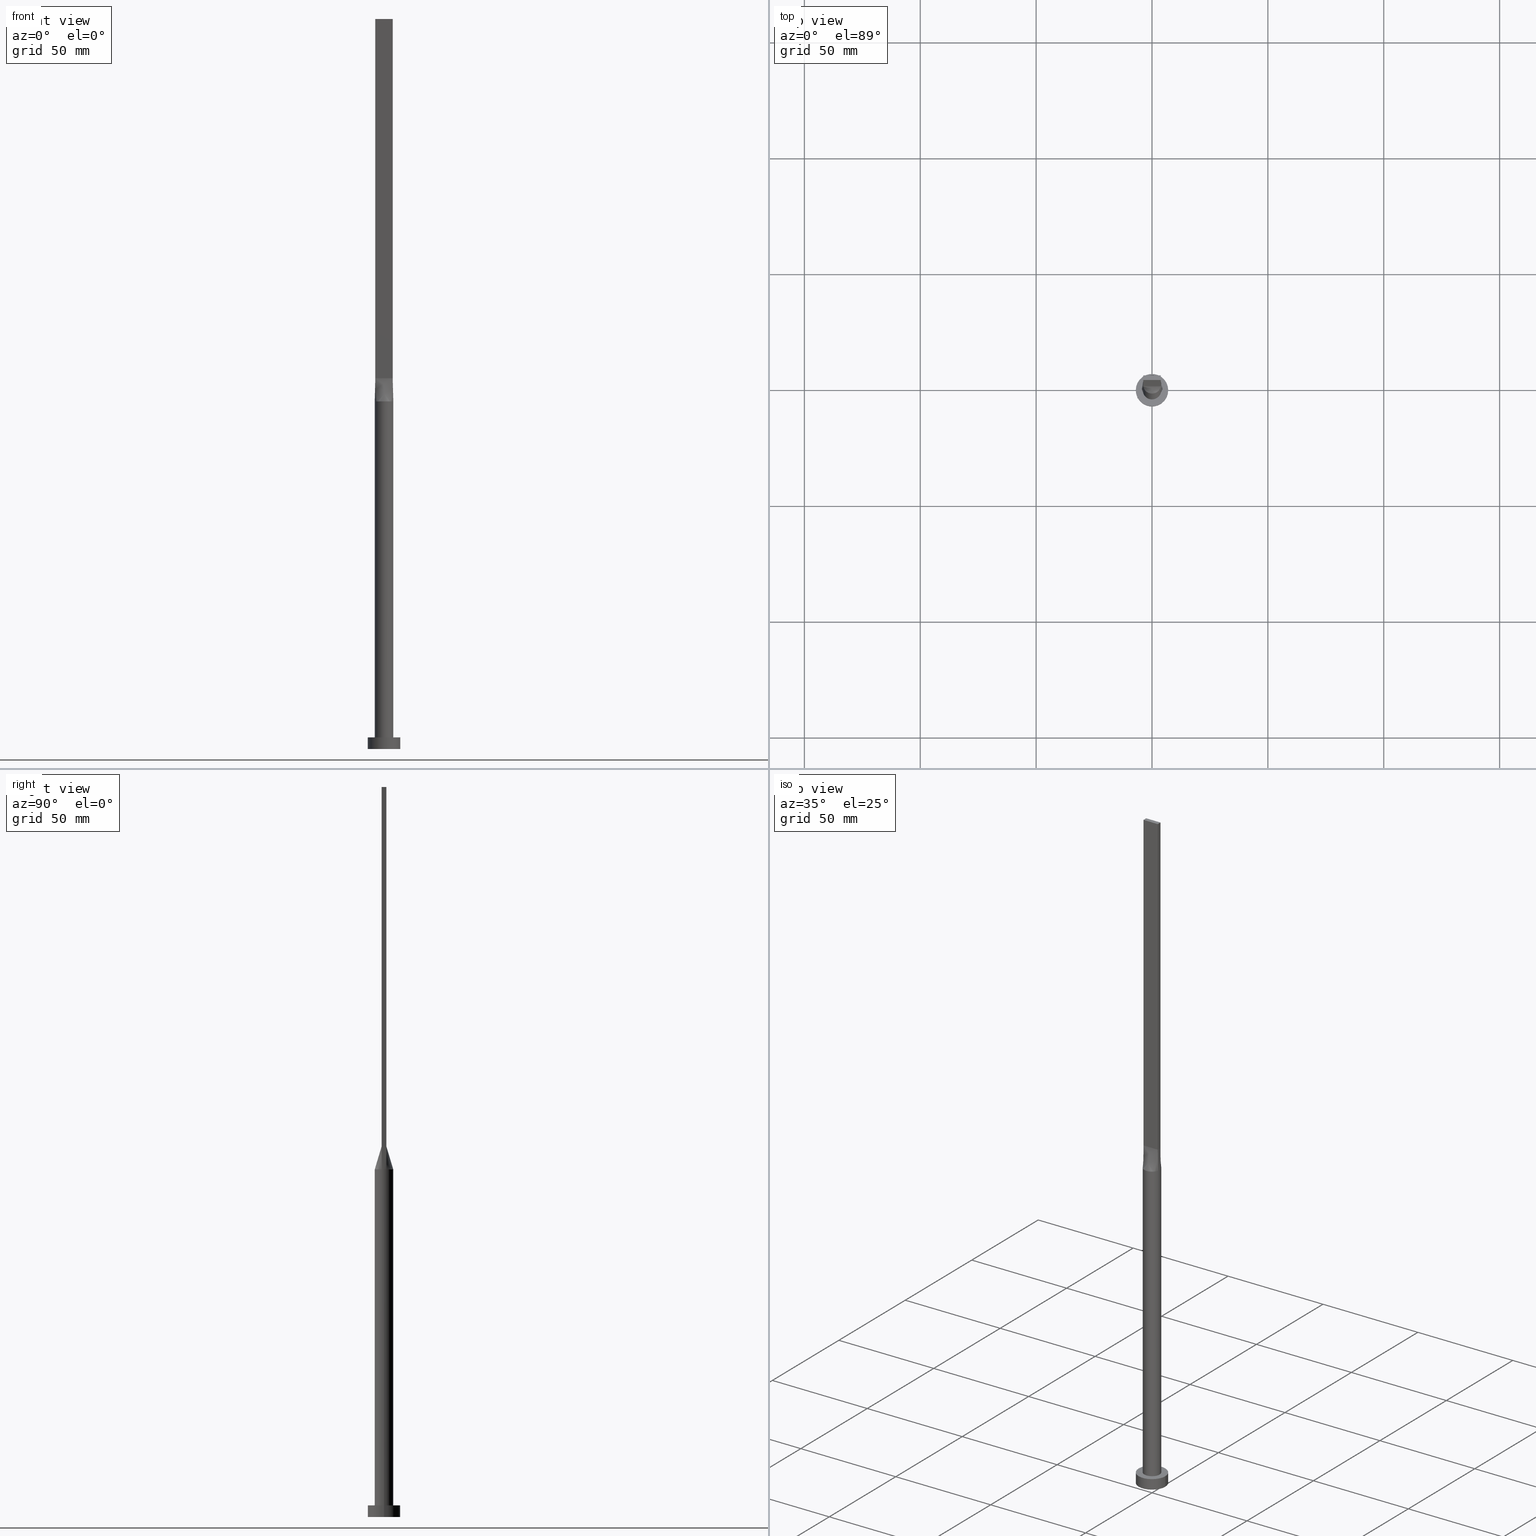
[diagram: canonical four-view strip — front | top / right | iso, engineering-drawing reading convention]
A machine part, canonical four-view strip (front | top / right | iso — engineering-drawing reading convention). The complete STEP part file that produces these views, byte-faithful:
ISO-10303-21;
HEADER;
FILE_DESCRIPTION (( 'STEP AP203' ),
    '1' );
FILE_NAME ('10a6.STEP',
    '2023-02-13T09:53:49',
    ( '' ),
    ( '' ),
    'SwSTEP 2.0',
    'SolidWorks 2019',
    '' );
FILE_SCHEMA (( 'CONFIG_CONTROL_DESIGN' ));
ENDSEC;

DATA;
#1 = CARTESIAN_POINT ( 'NONE',  ( -1.023074425454088221, 3.898373771260455811, 149.9999999999999716 ) ) ;
#2 = CARTESIAN_POINT ( 'NONE',  ( 3.750000000000000000, -0.9999999999999997780, 315.0000000000000000 ) ) ;
#3 = EDGE_CURVE ( 'NONE', #90, #185, #107, .T. ) ;
#4 = CARTESIAN_POINT ( 'NONE',  ( 1.249999999999999556, 1.000000000000000000, 159.9999999999999716 ) ) ;
#5 = APPLICATION_CONTEXT ( 'configuration controlled 3d designs of mechanical parts and assemblies' ) ;
#6 = ORIENTED_EDGE ( 'NONE', *, *, #312, .F. ) ;
#7 = CARTESIAN_POINT ( 'NONE',  ( 0.000000000000000000, 0.000000000000000000, 150.0000000000000000 ) ) ;
#8 = VERTEX_POINT ( 'NONE', #557 ) ;
#9 = APPROVAL_PERSON_ORGANIZATION ( #196, #233, #561 ) ;
#10 = EDGE_CURVE ( 'NONE', #364, #350, #384, .T. ) ;
#11 = ORIENTED_EDGE ( 'NONE', *, *, #139, .T. ) ;
#12 = ORIENTED_EDGE ( 'NONE', *, *, #161, .F. ) ;
#13 = UNCERTAINTY_MEASURE_WITH_UNIT (LENGTH_MEASURE( 1.000000000000000082E-05 ), #500, 'distance_accuracy_value', 'NONE');
#14 = DIRECTION ( 'NONE',  ( -1.000000000000000000, 0.000000000000000000, 0.000000000000000000 ) ) ;
#15 = VERTEX_POINT ( 'NONE', #389 ) ;
#16 = CARTESIAN_POINT ( 'NONE',  ( -1.940702937457743138, 3.532374760555930582, 149.9999999999999716 ) ) ;
#17 = VECTOR ( 'NONE', #335, 1000.000000000000000 ) ;
#18 = CC_DESIGN_APPROVAL ( #329, ( #286 ) ) ;
#19 = CARTESIAN_POINT ( 'NONE',  ( -3.781952206537765981, -1.341853921743402900, 150.0000000000000568 ) ) ;
#20 = CARTESIAN_POINT ( 'NONE',  ( -1.940702937457743138, 3.532374760555930582, 149.9999999999999716 ) ) ;
#21 = CC_DESIGN_DATE_AND_TIME_ASSIGNMENT ( #344, #29, ( #317 ) ) ;
#22 = CARTESIAN_POINT ( 'NONE',  ( 0.000000000000000000, 0.000000000000000000, 0.000000000000000000 ) ) ;
#23 = CALENDAR_DATE ( 2023, 13, 2 ) ;
#24 = FACE_OUTER_BOUND ( 'NONE', #549, .T. ) ;
#25 = COORDINATED_UNIVERSAL_TIME_OFFSET ( 1, 0, .AHEAD. ) ;
#26 = AXIS2_PLACEMENT_3D ( 'NONE', #30, #289, #466 ) ;
#27 = DIRECTION ( 'NONE',  ( -0.000000000000000000, -0.000000000000000000, -1.000000000000000000 ) ) ;
#28 = PRODUCT_RELATED_PRODUCT_CATEGORY ( 'detail', '', ( #410 ) ) ;
#29 = DATE_TIME_ROLE ( 'classification_date' ) ;
#30 = CARTESIAN_POINT ( 'NONE',  ( 3.750000000000000000, 1.000000000000000000, 315.0000000000000000 ) ) ;
#31 = APPROVAL_STATUS ( 'not_yet_approved' ) ;
#32 = PLANE ( 'NONE',  #172 ) ;
#33 = DIRECTION ( 'NONE',  ( 1.000000000000000000, -8.673617379884035472E-17, 0.000000000000000000 ) ) ;
#34 = CARTESIAN_POINT ( 'NONE',  ( 4.000000000000000000, -0.3494497975066829798, 150.0000000000000000 ) ) ;
#35 = DIRECTION ( 'NONE',  ( 1.000000000000000000, 0.000000000000000000, -0.000000000000000000 ) ) ;
#36 = ORIENTED_EDGE ( 'NONE', *, *, #99, .F. ) ;
#37 = EDGE_CURVE ( 'NONE', #15, #8, #339, .T. ) ;
#38 = CARTESIAN_POINT ( 'NONE',  ( 3.864939758404985604, -1.030650602241328873, 150.0000000000000000 ) ) ;
#39 = FACE_OUTER_BOUND ( 'NONE', #260, .T. ) ;
#40 = VERTEX_POINT ( 'NONE', #352 ) ;
#41 = DIRECTION ( 'NONE',  ( 0.01149316269309399140, -0.003064843384824947770, 0.9999292544707033548 ) ) ;
#42 = CARTESIAN_POINT ( 'NONE',  ( 0.000000000000000000, 0.000000000000000000, 5.000000000000000000 ) ) ;
#43 = CARTESIAN_POINT ( 'NONE',  ( 1.562499999999983569, -0.9999999999999995559, 159.9999999999999716 ) ) ;
#44 = CARTESIAN_POINT ( 'NONE',  ( -3.750000000000000000, -0.9999999999999991118, 315.0000000000000000 ) ) ;
#45 = VECTOR ( 'NONE', #448, 1000.000000000000000 ) ;
#46 = EDGE_CURVE ( 'NONE', #418, #185, #468, .T. ) ;
#47 = CARTESIAN_POINT ( 'NONE',  ( -3.781952206537765537, 1.341853921743403788, 150.0000000000000000 ) ) ;
#48 = DIRECTION ( 'NONE',  ( 0.000000000000000000, 0.000000000000000000, 1.000000000000000000 ) ) ;
#49 = CARTESIAN_POINT ( 'NONE',  ( -2.346407003458401253, 3.270103945996944095, 150.0000000000000000 ) ) ;
#50 = FACE_OUTER_BOUND ( 'NONE', #118, .T. ) ;
#51 = ORIENTED_EDGE ( 'NONE', *, *, #198, .T. ) ;
#52 = CARTESIAN_POINT ( 'NONE',  ( -3.750000000000000000, 1.000000000000000000, 160.0000000000000000 ) ) ;
#53 = ORIENTED_EDGE ( 'NONE', *, *, #320, .F. ) ;
#54 = VECTOR ( 'NONE', #478, 1000.000000000000000 ) ;
#55 = VERTEX_POINT ( 'NONE', #580 ) ;
#56 = EDGE_LOOP ( 'NONE', ( #374, #36, #100, #482 ) ) ;
#57 = CARTESIAN_POINT ( 'NONE',  ( -3.437500000000000000, 1.000000000000000000, 159.9999999999999716 ) ) ;
#58 = CARTESIAN_POINT ( 'NONE',  ( -3.750000000000000000, -0.9999999999999991118, 315.0000000000000000 ) ) ;
#59 = ORIENTED_EDGE ( 'NONE', *, *, #127, .T. ) ;
#60 = EDGE_CURVE ( 'NONE', #368, #90, #151, .T. ) ;
#61 = CARTESIAN_POINT ( 'NONE',  ( -0.5121855420560009753, 4.000000000000000888, 150.0000000000000000 ) ) ;
#62 = VECTOR ( 'NONE', #142, 1000.000000000000000 ) ;
#63 = DIRECTION ( 'NONE',  ( 0.000000000000000000, -1.000000000000000000, 0.000000000000000000 ) ) ;
#64 = CARTESIAN_POINT ( 'NONE',  ( 2.346407003458400808, 3.270103945996944983, 150.0000000000000000 ) ) ;
#65 = CARTESIAN_POINT ( 'NONE',  ( -3.750000000000000000, -0.9999999999999991118, 160.0000000000000000 ) ) ;
#66 = EDGE_CURVE ( 'NONE', #322, #189, #485, .T. ) ;
#67 = DIRECTION ( 'NONE',  ( -0.01149316269309399140, -0.003064843384825013256, -0.9999292544707033548 ) ) ;
#68 = CALENDAR_DATE ( 2023, 13, 2 ) ;
#69 = CIRCLE ( 'NONE', #397, 7.000000000000000000 ) ;
#70 = CARTESIAN_POINT ( 'NONE',  ( 0.000000000000000000, 0.000000000000000000, 5.000000000000000000 ) ) ;
#71 = COORDINATED_UNIVERSAL_TIME_OFFSET ( 1, 0, .AHEAD. ) ;
#72 = CARTESIAN_POINT ( 'NONE',  ( 3.749999999999999556, -0.6666666666666661856, 159.9999999999999716 ) ) ;
#73 = CARTESIAN_POINT ( 'NONE',  ( -3.750000000000000000, -0.9999999999999991118, 315.0000000000000000 ) ) ;
#74 = CARTESIAN_POINT ( 'NONE',  ( 3.750000000000000000, 1.000000000000000000, 315.0000000000000000 ) ) ;
#75 = LINE ( 'NONE', #407, #459 ) ;
#76 = ORIENTED_EDGE ( 'NONE', *, *, #37, .F. ) ;
#77 = PERSON_AND_ORGANIZATION ( #503, #323 ) ;
#78 = CC_DESIGN_PERSON_AND_ORGANIZATION_ASSIGNMENT ( #77, #392, ( #540 ) ) ;
#79 = CLOSED_SHELL ( 'NONE', ( #227, #207, #386, #145, #294, #183, #429, #521, #287, #567, #398, #86, #117, #215, #475 ) ) ;
#80 = CARTESIAN_POINT ( 'NONE',  ( 3.953459813730020311, 0.6987003947724492736, 150.0000000000000000 ) ) ;
#81 = CARTESIAN_POINT ( 'NONE',  ( -3.750000000000000000, -0.9999999999999991118, 315.0000000000000000 ) ) ;
#82 = CARTESIAN_POINT ( 'NONE',  ( -1.250000000000017764, -0.9999999999999993339, 159.9999999999999716 ) ) ;
#83 = CARTESIAN_POINT ( 'NONE',  ( 0.000000000000000000, 0.000000000000000000, 150.0000000000000000 ) ) ;
#84 = EDGE_LOOP ( 'NONE', ( #51, #361, #441, #223, #12 ) ) ;
#85 = CARTESIAN_POINT ( 'NONE',  ( 0.000000000000000000, 0.000000000000000000, 5.000000000000000000 ) ) ;
#86 = ADVANCED_FACE ( 'NONE', ( #532 ), #439, .F. ) ;
#87 = DIRECTION ( 'NONE',  ( -0.000000000000000000, -0.000000000000000000, -1.000000000000000000 ) ) ;
#88 = VECTOR ( 'NONE', #514, 1000.000000000000000 ) ;
#89 = PLANE ( 'NONE',  #95 ) ;
#90 = VERTEX_POINT ( 'NONE', #125 ) ;
#91 = DIRECTION ( 'NONE',  ( 1.000000000000000000, 0.000000000000000000, 0.000000000000000000 ) ) ;
#92 = VERTEX_POINT ( 'NONE', #129 ) ;
#93 = EDGE_CURVE ( 'NONE', #8, #364, #304, .T. ) ;
#94 = VERTEX_POINT ( 'NONE', #313 ) ;
#95 = AXIS2_PLACEMENT_3D ( 'NONE', #273, #541, #452 ) ;
#96 = ORIENTED_EDGE ( 'NONE', *, *, #46, .T. ) ;
#97 = CARTESIAN_POINT ( 'NONE',  ( -1.562500000000000444, 1.000000000000000000, 159.9999999999999716 ) ) ;
#98 = CARTESIAN_POINT ( 'NONE',  ( -3.864939758404985604, -1.030650602241328206, 150.0000000000000000 ) ) ;
#99 = EDGE_CURVE ( 'NONE', #189, #350, #449, .T. ) ;
#100 = ORIENTED_EDGE ( 'NONE', *, *, #66, .F. ) ;
#101 = CARTESIAN_POINT ( 'NONE',  ( -0.6250000000000005551, 1.000000000000000000, 159.9999999999999716 ) ) ;
#102 = PLANE ( 'NONE',  #345 ) ;
#103 = ADVANCED_BREP_SHAPE_REPRESENTATION ( '10a6', ( #408, #210 ), #221 ) ;
#104 = CARTESIAN_POINT ( 'NONE',  ( 0.3124999999999995004, 1.000000000000000000, 160.0000000000000000 ) ) ;
#105 = VECTOR ( 'NONE', #87, 1000.000000000000000 ) ;
#106 = DIRECTION ( 'NONE',  ( 0.000000000000000000, 0.000000000000000000, 1.000000000000000000 ) ) ;
#107 = LINE ( 'NONE', #342, #54 ) ;
#108 = PERSON_AND_ORGANIZATION ( #503, #323 ) ;
#109 = CC_DESIGN_PERSON_AND_ORGANIZATION_ASSIGNMENT ( #428, #159, ( #286 ) ) ;
#110 = CYLINDRICAL_SURFACE ( 'NONE', #144, 7.000000000000000000 ) ;
#111 = PERSON_AND_ORGANIZATION ( #503, #323 ) ;
#112 = LINE ( 'NONE', #563, #497 ) ;
#113 = DIRECTION ( 'NONE',  ( 0.000000000000000000, 0.000000000000000000, 1.000000000000000000 ) ) ;
#114 = DATE_AND_TIME ( #290, #332 ) ;
#115 = DIRECTION ( 'NONE',  ( 0.000000000000000000, 0.000000000000000000, 1.000000000000000000 ) ) ;
#116 = DIRECTION ( 'NONE',  ( -0.000000000000000000, 1.000000000000000000, -0.000000000000000000 ) ) ;
#117 = ADVANCED_FACE ( 'NONE', ( #216 ), #400, .F. ) ;
#118 = EDGE_LOOP ( 'NONE', ( #280, #372, #96, #417, #458, #217 ) ) ;
#119 = PERSON_AND_ORGANIZATION ( #503, #323 ) ;
#120 = CARTESIAN_POINT ( 'NONE',  ( 3.750000000000000000, -0.9999999999999997780, 160.0000000000000000 ) ) ;
#121 = DIRECTION ( 'NONE',  ( -0.000000000000000000, -0.000000000000000000, -1.000000000000000000 ) ) ;
#122 = VECTOR ( 'NONE', #121, 1000.000000000000000 ) ;
#123 = CARTESIAN_POINT ( 'NONE',  ( 0.6249999999999806821, -0.9999999999999995559, 159.9999999999999716 ) ) ;
#124 = CIRCLE ( 'NONE', #440, 7.000000000000000000 ) ;
#125 = CARTESIAN_POINT ( 'NONE',  ( -4.000000000000000000, -2.459132308497027359E-16, 150.0000000000000000 ) ) ;
#126 = ORIENTED_EDGE ( 'NONE', *, *, #250, .T. ) ;
#127 = EDGE_CURVE ( 'NONE', #55, #40, #488, .T. ) ;
#128 = LINE ( 'NONE', #74, #354 ) ;
#129 = CARTESIAN_POINT ( 'NONE',  ( 7.000000000000000000, 8.572527594031473190E-16, 0.000000000000000000 ) ) ;
#130 = VERTEX_POINT ( 'NONE', #402 ) ;
#131 = CARTESIAN_POINT ( 'NONE',  ( -3.009488128496037529, 2.672487015486668671, 150.0000000000000000 ) ) ;
#132 = ORIENTED_EDGE ( 'NONE', *, *, #275, .F. ) ;
#133 = CARTESIAN_POINT ( 'NONE',  ( 3.267840578657193795, 2.338604872288698289, 149.9999999999999432 ) ) ;
#134 = VECTOR ( 'NONE', #41, 1000.000000000000114 ) ;
#135 = EDGE_LOOP ( 'NONE', ( #411, #174, #412, #450 ) ) ;
#136 = CARTESIAN_POINT ( 'NONE',  ( 3.009488128496037085, 2.672487015486669115, 150.0000000000000000 ) ) ;
#137 = DIRECTION ( 'NONE',  ( 0.000000000000000000, 0.000000000000000000, 1.000000000000000000 ) ) ;
#138 = ORIENTED_EDGE ( 'NONE', *, *, #250, .F. ) ;
#139 = EDGE_CURVE ( 'NONE', #350, #507, #75, .T. ) ;
#140 = CARTESIAN_POINT ( 'NONE',  ( 0.000000000000000000, 0.000000000000000000, 5.000000000000000000 ) ) ;
#141 = EDGE_LOOP ( 'NONE', ( #230, #213, #138, #132, #502, #357 ) ) ;
#142 = DIRECTION ( 'NONE',  ( -1.000000000000000000, -0.000000000000000000, -0.000000000000000000 ) ) ;
#143 = ORIENTED_EDGE ( 'NONE', *, *, #161, .T. ) ;
#144 = AXIS2_PLACEMENT_3D ( 'NONE', #70, #27, #568 ) ;
#145 = ADVANCED_FACE ( 'NONE', ( #349, #39 ), #176, .T. ) ;
#146 = ORIENTED_EDGE ( 'NONE', *, *, #420, .F. ) ;
#147 = CARTESIAN_POINT ( 'NONE',  ( -0.3125000000000004996, 1.000000000000000000, 159.9999999999999716 ) ) ;
#148 = CARTESIAN_POINT ( 'NONE',  ( 3.750000000000000000, -0.9999999999999997780, 315.0000000000000000 ) ) ;
#149 = CARTESIAN_POINT ( 'NONE',  ( 3.781952206537764205, 1.341853921743403788, 150.0000000000000568 ) ) ;
#150 = CARTESIAN_POINT ( 'NONE',  ( -2.500000000000011102, -0.9999999999999991118, 159.9999999999999716 ) ) ;
#151 = CIRCLE ( 'NONE', #469, 4.000000000000000000 ) ;
#152 = FACE_OUTER_BOUND ( 'NONE', #256, .T. ) ;
#153 = EDGE_LOOP ( 'NONE', ( #126, #143, #267, #547 ) ) ;
#154 = PERSON_AND_ORGANIZATION ( #503, #323 ) ;
#155 = CARTESIAN_POINT ( 'NONE',  ( -3.749999999999999556, -0.3333333333333324822, 159.9999999999999716 ) ) ;
#156 = APPROVAL_ROLE ( '' ) ;
#157 = CARTESIAN_POINT ( 'NONE',  ( -1.023074425454088887, -3.898373771260456255, 149.9999999999999716 ) ) ;
#158 = EDGE_LOOP ( 'NONE', ( #324, #76, #226, #542 ) ) ;
#159 = PERSON_AND_ORGANIZATION_ROLE ( 'creator' ) ;
#160 = AXIS2_PLACEMENT_3D ( 'NONE', #373, #48, #91 ) ;
#161 = EDGE_CURVE ( 'NONE', #272, #350, #528, .T. ) ;
#162 = CARTESIAN_POINT ( 'NONE',  ( 1.249999999999982236, -0.9999999999999995559, 159.9999999999999716 ) ) ;
#163 = CARTESIAN_POINT ( 'NONE',  ( -3.750000000000000000, 1.000000000000000000, 160.0000000000000000 ) ) ;
#164 = SECURITY_CLASSIFICATION_LEVEL ( 'unclassified' ) ;
#165 = DIRECTION ( 'NONE',  ( 1.000000000000000000, 0.000000000000000000, 0.000000000000000000 ) ) ;
#166 = CARTESIAN_POINT ( 'NONE',  ( -7.000000000000000000, 0.000000000000000000, 5.000000000000000000 ) ) ;
#167 = CARTESIAN_POINT ( 'NONE',  ( 3.750000000000000000, 1.000000000000000000, 160.0000000000000000 ) ) ;
#168 = DIRECTION ( 'NONE',  ( -0.000000000000000000, -0.000000000000000000, -1.000000000000000000 ) ) ;
#169 = EDGE_CURVE ( 'NONE', #322, #364, #301, .T. ) ;
#170 = CIRCLE ( 'NONE', #365, 4.000000000000000000 ) ;
#171 = DIRECTION ( 'NONE',  ( -0.01149316269309394803, -0.003064843384824991138, 0.9999292544707033548 ) ) ;
#172 = AXIS2_PLACEMENT_3D ( 'NONE', #445, #115, #214 ) ;
#173 = DIRECTION ( 'NONE',  ( -0.01149316269309399140, 0.003064843384825013256, 0.9999292544707033548 ) ) ;
#174 = ORIENTED_EDGE ( 'NONE', *, *, #483, .T. ) ;
#175 = CARTESIAN_POINT ( 'NONE',  ( -3.653499896451231521, 1.673258289339058180, 149.9999999999999716 ) ) ;
#176 = PLANE ( 'NONE',  #199 ) ;
#177 = B_SPLINE_SURFACE_WITH_KNOTS ( 'NONE', 3, 1, ( 
 ( #265, #378 ),
 ( #149, #498 ),
 ( #281, #453 ),
 ( #539, #318 ),
 ( #136, #537 ),
 ( #64, #558 ),
 ( #409, #4 ),
 ( #179, #375 ),
 ( #472, #104 ),
 ( #61, #147 ),
 ( #510, #101 ),
 ( #16, #555 ),
 ( #181, #97 ),
 ( #131, #465 ),
 ( #362, #191 ),
 ( #359, #243 ),
 ( #311, #57 ),
 ( #421, #241 ) ),
 .UNSPECIFIED., .F., .F., .F.,
 ( 4, 2, 2, 2, 2, 2, 2, 2, 4 ),
 ( 2, 2 ),
 ( 0.000000000000000000, 0.1250000000000000000, 0.2500000000000000000, 0.3750000000000000000, 0.5000000000000000000, 0.6250000000000000000, 0.7500000000000000000, 0.8750000000000000000, 1.000000000000000000 ),
 ( 0.000000000000000000, 1.000000000000000000 ),
 .UNSPECIFIED. ) ;
#178 = VERTEX_POINT ( 'NONE', #259 ) ;
#179 = CARTESIAN_POINT ( 'NONE',  ( 1.023074425454087999, 3.898373771260456255, 149.9999999999999716 ) ) ;
#180 = ORIENTED_EDGE ( 'NONE', *, *, #268, .F. ) ;
#181 = CARTESIAN_POINT ( 'NONE',  ( -2.346407003458401253, 3.270103945996944095, 150.0000000000000000 ) ) ;
#182 = B_SPLINE_SURFACE_WITH_KNOTS ( 'NONE', 3, 1, ( 
 ( #457, #52 ),
 ( #427, #203 ),
 ( #291, #295 ),
 ( #430, #155 ),
 ( #197, #192 ),
 ( #334, #518 ) ),
 .UNSPECIFIED., .F., .F., .F.,
 ( 4, 2, 4 ),
 ( 2, 2 ),
 ( 0.000000000000000000, 0.5000000000000000000, 1.000000000000000000 ),
 ( 0.000000000000000000, 1.000000000000000000 ),
 .UNSPECIFIED. ) ;
#183 = ADVANCED_FACE ( 'NONE', ( #394 ), #572, .T. ) ;
#184 = VECTOR ( 'NONE', #171, 1000.000000000000114 ) ;
#185 = VERTEX_POINT ( 'NONE', #356 ) ;
#186 = ORIENTED_EDGE ( 'NONE', *, *, #46, .F. ) ;
#187 = ORIENTED_EDGE ( 'NONE', *, *, #305, .F. ) ;
#188 = EDGE_CURVE ( 'NONE', #507, #8, #535, .T. ) ;
#189 = VERTEX_POINT ( 'NONE', #548 ) ;
#190 = CIRCLE ( 'NONE', #513, 4.000000000000000000 ) ;
#191 = CARTESIAN_POINT ( 'NONE',  ( -2.500000000000000444, 1.000000000000000000, 159.9999999999999716 ) ) ;
#192 = CARTESIAN_POINT ( 'NONE',  ( -3.749999999999999556, -0.6666666666666657415, 159.9999999999999716 ) ) ;
#193 = LINE ( 'NONE', #545, #105 ) ;
#194 = CARTESIAN_POINT ( 'NONE',  ( -3.125000000000005773, -0.9999999999999991118, 159.9999999999999716 ) ) ;
#195 = EDGE_LOOP ( 'NONE', ( #515, #554, #495, #380 ) ) ;
#196 = PERSON_AND_ORGANIZATION ( #503, #323 ) ;
#197 = CARTESIAN_POINT ( 'NONE',  ( -3.953459813730020311, -0.6987003947724488295, 150.0000000000000000 ) ) ;
#198 = EDGE_CURVE ( 'NONE', #272, #130, #533, .T. ) ;
#199 = AXIS2_PLACEMENT_3D ( 'NONE', #491, #209, #219 ) ;
#200 = PERSON_AND_ORGANIZATION ( #503, #323 ) ;
#201 = AXIS2_PLACEMENT_3D ( 'NONE', #303, #113, #576 ) ;
#202 = APPLICATION_CONTEXT ( 'configuration controlled 3d designs of mechanical parts and assemblies' ) ;
#203 = CARTESIAN_POINT ( 'NONE',  ( -3.749999999999999556, 0.6666666666666669627, 159.9999999999999716 ) ) ;
#204 = CALENDAR_DATE ( 2023, 13, 2 ) ;
#205 = LINE ( 'NONE', #238, #425 ) ;
#206 = APPROVAL_ROLE ( '' ) ;
#207 = ADVANCED_FACE ( 'NONE', ( #460 ), #225, .T. ) ;
#208 = CARTESIAN_POINT ( 'NONE',  ( 0.3124999999999803491, -0.9999999999999995559, 159.9999999999999716 ) ) ;
#209 = DIRECTION ( 'NONE',  ( 0.000000000000000000, 0.000000000000000000, 1.000000000000000000 ) ) ;
#210 = AXIS2_PLACEMENT_3D ( 'NONE', #436, #333, #302 ) ;
#211 = CARTESIAN_POINT ( 'NONE',  ( 3.009488128496036641, -2.672487015486668671, 150.0000000000000000 ) ) ;
#212 = CARTESIAN_POINT ( 'NONE',  ( -3.750000000000000000, 1.000000000000000000, 315.0000000000000000 ) ) ;
#213 = ORIENTED_EDGE ( 'NONE', *, *, #198, .F. ) ;
#214 = DIRECTION ( 'NONE',  ( 1.000000000000000000, 0.000000000000000000, -0.000000000000000000 ) ) ;
#215 = ADVANCED_FACE ( 'NONE', ( #321 ), #89, .F. ) ;
#216 = FACE_OUTER_BOUND ( 'NONE', #56, .T. ) ;
#217 = ORIENTED_EDGE ( 'NONE', *, *, #578, .F. ) ;
#218 = CARTESIAN_POINT ( 'NONE',  ( 2.187499999999986677, -0.9999999999999995559, 159.9999999999999716 ) ) ;
#219 = DIRECTION ( 'NONE',  ( 1.000000000000000000, 0.000000000000000000, -0.000000000000000000 ) ) ;
#220 = LINE ( 'NONE', #534, #45 ) ;
#221 =( GEOMETRIC_REPRESENTATION_CONTEXT ( 3 ) GLOBAL_UNCERTAINTY_ASSIGNED_CONTEXT ( ( #13 ) ) GLOBAL_UNIT_ASSIGNED_CONTEXT ( ( #500, #296, #340 ) ) REPRESENTATION_CONTEXT ( 'NONE', 'WORKASPACE' ) );
#222 = DIRECTION ( 'NONE',  ( 8.673617379884036705E-17, 1.000000000000000000, -0.000000000000000000 ) ) ;
#223 = ORIENTED_EDGE ( 'NONE', *, *, #139, .F. ) ;
#224 = CARTESIAN_POINT ( 'NONE',  ( -3.865236553917747120, 1.030730781768519622, 150.0000000000000000 ) ) ;
#225 = CYLINDRICAL_SURFACE ( 'NONE', #433, 7.000000000000000000 ) ;
#226 = ORIENTED_EDGE ( 'NONE', *, *, #462, .F. ) ;
#227 = ADVANCED_FACE ( 'NONE', ( #50 ), #229, .T. ) ;
#228 = CARTESIAN_POINT ( 'NONE',  ( -3.009488128496037529, 2.672487015486668671, 150.0000000000000000 ) ) ;
#229 = CYLINDRICAL_SURFACE ( 'NONE', #278, 4.000000000000000000 ) ;
#230 = ORIENTED_EDGE ( 'NONE', *, *, #446, .F. ) ;
#231 = CC_DESIGN_SECURITY_CLASSIFICATION ( #317, ( #286 ) ) ;
#232 = EDGE_LOOP ( 'NONE', ( #326, #499, #279, #455 ) ) ;
#233 = APPROVAL ( #390, 'NEUR�EN�' ) ;
#234 = EDGE_LOOP ( 'NONE', ( #236, #505, #6, #536, #444 ) ) ;
#235 = CARTESIAN_POINT ( 'NONE',  ( 0.000000000000000000, 0.000000000000000000, 150.0000000000000000 ) ) ;
#236 = ORIENTED_EDGE ( 'NONE', *, *, #60, .T. ) ;
#237 = CARTESIAN_POINT ( 'NONE',  ( 3.865212754195084699, 1.030724393897464841, 150.0000000000000000 ) ) ;
#238 = CARTESIAN_POINT ( 'NONE',  ( 7.000000000000000000, 8.572527594031473190E-16, 5.000000000000000000 ) ) ;
#239 = VECTOR ( 'NONE', #347, 1000.000000000000000 ) ;
#240 = CC_DESIGN_APPROVAL ( #456, ( #540 ) ) ;
#241 = CARTESIAN_POINT ( 'NONE',  ( -3.750000000000000000, 1.000000000000000000, 160.0000000000000000 ) ) ;
#242 = CARTESIAN_POINT ( 'NONE',  ( -3.653499896451231521, -1.673258289339057514, 150.0000000000000000 ) ) ;
#243 = CARTESIAN_POINT ( 'NONE',  ( -3.125000000000000000, 1.000000000000000000, 159.9999999999999716 ) ) ;
#244 = DIRECTION ( 'NONE',  ( 0.000000000000000000, 0.000000000000000000, 1.000000000000000000 ) ) ;
#245 = DATE_AND_TIME ( #23, #479 ) ;
#246 = LINE ( 'NONE', #148, #88 ) ;
#247 = COORDINATED_UNIVERSAL_TIME_OFFSET ( 1, 0, .AHEAD. ) ;
#248 = CIRCLE ( 'NONE', #414, 7.000000000000000000 ) ;
#249 = PLANE ( 'NONE',  #26 ) ;
#250 = EDGE_CURVE ( 'NONE', #464, #272, #170, .T. ) ;
#251 = DATE_TIME_ROLE ( 'creation_date' ) ;
#252 = CARTESIAN_POINT ( 'NONE',  ( 0.5121855420560003092, -3.999999999999999112, 150.0000000000000000 ) ) ;
#253 = DIRECTION ( 'NONE',  ( 1.000000000000000000, 0.000000000000000000, 0.000000000000000000 ) ) ;
#254 = APPLICATION_PROTOCOL_DEFINITION ( 'international standard', 'config_control_design', 1994, #5 ) ;
#255 = CARTESIAN_POINT ( 'NONE',  ( -3.807469879202492802, 1.015325301120663992, 155.0000000000000000 ) ) ;
#256 = EDGE_LOOP ( 'NONE', ( #314, #187, #59, #538 ) ) ;
#257 = CIRCLE ( 'NONE', #471, 7.000000000000000000 ) ;
#258 = CARTESIAN_POINT ( 'NONE',  ( 3.807469879202492358, 1.015325301120664436, 155.0000000000000000 ) ) ;
#259 = CARTESIAN_POINT ( 'NONE',  ( 3.865212754195084699, 1.030724393897464841, 150.0000000000000000 ) ) ;
#260 = EDGE_LOOP ( 'NONE', ( #552, #274 ) ) ;
#261 = CARTESIAN_POINT ( 'NONE',  ( -0.6250000000000193179, -0.9999999999999993339, 159.9999999999999716 ) ) ;
#262 = DIRECTION ( 'NONE',  ( -1.000000000000000000, 0.000000000000000000, 0.000000000000000000 ) ) ;
#263 = CARTESIAN_POINT ( 'NONE',  ( -2.187500000000013323, -0.9999999999999993339, 159.9999999999999716 ) ) ;
#264 = DIRECTION ( 'NONE',  ( 1.000000000000000000, 0.000000000000000000, 0.000000000000000000 ) ) ;
#265 = CARTESIAN_POINT ( 'NONE',  ( 3.864939758404985160, 1.030650602241329539, 150.0000000000000000 ) ) ;
#266 = DIRECTION ( 'NONE',  ( 0.000000000000000000, 0.000000000000000000, 1.000000000000000000 ) ) ;
#267 = ORIENTED_EDGE ( 'NONE', *, *, #10, .F. ) ;
#268 = EDGE_CURVE ( 'NONE', #185, #418, #553, .T. ) ;
#269 = CARTESIAN_POINT ( 'NONE',  ( 1.023074425454087999, 3.898373771260456255, 149.9999999999999716 ) ) ;
#270 = CARTESIAN_POINT ( 'NONE',  ( 0.000000000000000000, 0.000000000000000000, 150.0000000000000000 ) ) ;
#271 = PRODUCT_DEFINITION_SHAPE ( 'NONE', 'NONE',  #540 ) ;
#272 = VERTEX_POINT ( 'NONE', #367 ) ;
#273 = CARTESIAN_POINT ( 'NONE',  ( 3.750000000000000000, -0.9999999999999997780, 315.0000000000000000 ) ) ;
#274 = ORIENTED_EDGE ( 'NONE', *, *, #489, .T. ) ;
#275 = EDGE_CURVE ( 'NONE', #90, #464, #190, .T. ) ;
#276 = AXIS2_PLACEMENT_3D ( 'NONE', #235, #266, #363 ) ;
#277 = CARTESIAN_POINT ( 'NONE',  ( 0.000000000000000000, 0.000000000000000000, 150.0000000000000000 ) ) ;
#278 = AXIS2_PLACEMENT_3D ( 'NONE', #7, #506, #14 ) ;
#279 = ORIENTED_EDGE ( 'NONE', *, *, #358, .F. ) ;
#280 = ORIENTED_EDGE ( 'NONE', *, *, #516, .F. ) ;
#281 = CARTESIAN_POINT ( 'NONE',  ( 3.653499896451231521, 1.673258289339057958, 150.0000000000000000 ) ) ;
#282 = B_SPLINE_CURVE_WITH_KNOTS ( 'NONE', 3,
 ( #237, #284, #288, #133, #316, #467, #330, #269, #426, #451, #1, #20, #49, #228, #512, #175, #47, #224 ),
 .UNSPECIFIED., .F., .F.,
 ( 4, 2, 2, 2, 2, 2, 2, 2, 4 ),
 ( 0.000000000000000000, 0.1250000000000000000, 0.2500000000000000000, 0.3750000000000000000, 0.5000000000000000000, 0.6250000000000000000, 0.7500000000000000000, 0.8750000000000000000, 1.000000000000000000 ),
 .UNSPECIFIED. ) ;
#283 = ORIENTED_EDGE ( 'NONE', *, *, #99, .T. ) ;
#284 = CARTESIAN_POINT ( 'NONE',  ( 3.781952206537764205, 1.341853921743403788, 150.0000000000000568 ) ) ;
#285 = LINE ( 'NONE', #565, #405 ) ;
#286 = PRODUCT_DEFINITION_FORMATION_WITH_SPECIFIED_SOURCE ( 'LIBOVOLN�', '', #410, .NOT_KNOWN. ) ;
#287 = ADVANCED_FACE ( 'NONE', ( #501 ), #182, .T. ) ;
#288 = CARTESIAN_POINT ( 'NONE',  ( 3.653499896451231521, 1.673258289339057958, 150.0000000000000000 ) ) ;
#289 = DIRECTION ( 'NONE',  ( 0.000000000000000000, -1.000000000000000000, 0.000000000000000000 ) ) ;
#290 = CALENDAR_DATE ( 2023, 13, 2 ) ;
#291 = CARTESIAN_POINT ( 'NONE',  ( -4.000000000000000000, 0.3494497975066826467, 150.0000000000000000 ) ) ;
#292 = CARTESIAN_POINT ( 'NONE',  ( -3.750000000000000000, -0.9999999999999991118, 160.0000000000000000 ) ) ;
#293 = PERSON_AND_ORGANIZATION_ROLE ( 'classification_officer' ) ;
#294 = ADVANCED_FACE ( 'NONE', ( #24 ), #102, .F. ) ;
#295 = CARTESIAN_POINT ( 'NONE',  ( -3.749999999999999556, 0.3333333333333338144, 159.9999999999999716 ) ) ;
#296 =( NAMED_UNIT ( * ) PLANE_ANGLE_UNIT ( ) SI_UNIT ( $, .RADIAN. ) );
#297 = CC_DESIGN_APPROVAL ( #233, ( #317 ) ) ;
#298 = CARTESIAN_POINT ( 'NONE',  ( 3.864939758404985160, -1.030650602241329539, 150.0000000000000000 ) ) ;
#299 = DIRECTION ( 'NONE',  ( -0.000000000000000000, -0.000000000000000000, -1.000000000000000000 ) ) ;
#300 = CARTESIAN_POINT ( 'NONE',  ( 3.953459813730019423, -0.6987003947724502728, 150.0000000000000284 ) ) ;
#301 = LINE ( 'NONE', #81, #395 ) ;
#302 = DIRECTION ( 'NONE',  ( 1.000000000000000000, 0.000000000000000000, 0.000000000000000000 ) ) ;
#303 = CARTESIAN_POINT ( 'NONE',  ( 0.000000000000000000, 0.000000000000000000, 150.0000000000000000 ) ) ;
#304 = LINE ( 'NONE', #163, #383 ) ;
#305 = EDGE_CURVE ( 'NONE', #55, #94, #124, .T. ) ;
#306 = CARTESIAN_POINT ( 'NONE',  ( -1.562500000000016653, -0.9999999999999993339, 159.9999999999999716 ) ) ;
#307 = DIRECTION ( 'NONE',  ( 0.000000000000000000, 0.000000000000000000, 1.000000000000000000 ) ) ;
#308 = CARTESIAN_POINT ( 'NONE',  ( 3.267840578657194239, -2.338604872288699177, 149.9999999999999716 ) ) ;
#309 = DIRECTION ( 'NONE',  ( 0.000000000000000000, -1.000000000000000000, 0.000000000000000000 ) ) ;
#310 = ORIENTED_EDGE ( 'NONE', *, *, #358, .T. ) ;
#311 = CARTESIAN_POINT ( 'NONE',  ( -3.781952206537765537, 1.341853921743403788, 150.0000000000000000 ) ) ;
#312 = EDGE_CURVE ( 'NONE', #364, #464, #112, .T. ) ;
#313 = CARTESIAN_POINT ( 'NONE',  ( 7.000000000000000000, 8.572527594031473190E-16, 5.000000000000000000 ) ) ;
#314 = ORIENTED_EDGE ( 'NONE', *, *, #415, .F. ) ;
#315 = AXIS2_PLACEMENT_3D ( 'NONE', #577, #168, #262 ) ;
#316 = CARTESIAN_POINT ( 'NONE',  ( 3.009488128496037085, 2.672487015486669115, 150.0000000000000000 ) ) ;
#317 = SECURITY_CLASSIFICATION ( '', '', #164 ) ;
#318 = CARTESIAN_POINT ( 'NONE',  ( 2.499999999999999112, 1.000000000000000000, 159.9999999999999716 ) ) ;
#319 = EDGE_LOOP ( 'NONE', ( #180, #186 ) ) ;
#320 = EDGE_CURVE ( 'NONE', #189, #419, #246, .T. ) ;
#321 = FACE_OUTER_BOUND ( 'NONE', #461, .T. ) ;
#322 = VERTEX_POINT ( 'NONE', #58 ) ;
#323 = ORGANIZATION ( 'NEUR�EN�', 'NEUR�EN�', '' ) ;
#324 = ORIENTED_EDGE ( 'NONE', *, *, #188, .T. ) ;
#325 = CARTESIAN_POINT ( 'NONE',  ( 3.750000000000000000, 1.000000000000000000, 315.0000000000000000 ) ) ;
#326 = ORIENTED_EDGE ( 'NONE', *, *, #93, .T. ) ;
#327 = CARTESIAN_POINT ( 'NONE',  ( 3.750000000000000000, 1.000000000000000000, 160.0000000000000000 ) ) ;
#328 = CARTESIAN_POINT ( 'NONE',  ( -3.437500000000003109, -0.9999999999999991118, 159.9999999999999716 ) ) ;
#329 = APPROVAL ( #31, 'NEUR�EN�' ) ;
#330 = CARTESIAN_POINT ( 'NONE',  ( 1.940702937457743582, 3.532374760555930582, 149.9999999999999716 ) ) ;
#331 = CARTESIAN_POINT ( 'NONE',  ( 0.000000000000000000, 0.000000000000000000, 5.000000000000000000 ) ) ;
#332 = LOCAL_TIME ( 10, 53, 49.00000000000000000, #517 ) ;
#333 = DIRECTION ( 'NONE',  ( 0.000000000000000000, 0.000000000000000000, 1.000000000000000000 ) ) ;
#334 = CARTESIAN_POINT ( 'NONE',  ( -3.864939758404985604, -1.030650602241328428, 150.0000000000000000 ) ) ;
#335 = DIRECTION ( 'NONE',  ( 1.000000000000000000, -8.673617379884035472E-17, 0.000000000000000000 ) ) ;
#336 = PERSON_AND_ORGANIZATION_ROLE ( 'design_supplier' ) ;
#337 = CC_DESIGN_PERSON_AND_ORGANIZATION_ASSIGNMENT ( #111, #293, ( #317 ) ) ;
#338 = DIRECTION ( 'NONE',  ( 1.000000000000000000, 0.000000000000000000, -0.000000000000000000 ) ) ;
#339 = LINE ( 'NONE', #523, #413 ) ;
#340 =( NAMED_UNIT ( * ) SI_UNIT ( $, .STERADIAN. ) SOLID_ANGLE_UNIT ( ) );
#341 = CARTESIAN_POINT ( 'NONE',  ( -3.865220763612065902, -1.030726602927787949, 150.0000000000000000 ) ) ;
#342 = CARTESIAN_POINT ( 'NONE',  ( -4.000000000000000000, 0.000000000000000000, 150.0000000000000000 ) ) ;
#343 = AXIS2_PLACEMENT_3D ( 'NONE', #42, #443, #253 ) ;
#344 = DATE_AND_TIME ( #204, #543 ) ;
#345 = AXIS2_PLACEMENT_3D ( 'NONE', #470, #511, #338 ) ;
#346 = CARTESIAN_POINT ( 'NONE',  ( 3.781952206537765981, -1.341853921743404232, 150.0000000000000000 ) ) ;
#347 = DIRECTION ( 'NONE',  ( -0.000000000000000000, -0.000000000000000000, -1.000000000000000000 ) ) ;
#348 = FACE_OUTER_BOUND ( 'NONE', #84, .T. ) ;
#349 = FACE_BOUND ( 'NONE', #319, .T. ) ;
#350 = VERTEX_POINT ( 'NONE', #388 ) ;
#351 = CARTESIAN_POINT ( 'NONE',  ( 3.749999999999999556, 0.3333333333333339810, 159.9999999999999716 ) ) ;
#352 = CARTESIAN_POINT ( 'NONE',  ( -7.000000000000000000, 0.000000000000000000, 0.000000000000000000 ) ) ;
#353 = VECTOR ( 'NONE', #33, 1000.000000000000000 ) ;
#354 = VECTOR ( 'NONE', #406, 1000.000000000000000 ) ;
#355 = CARTESIAN_POINT ( 'NONE',  ( -0.3125000000000197065, -0.9999999999999993339, 160.0000000000000000 ) ) ;
#356 = CARTESIAN_POINT ( 'NONE',  ( -4.000000000000000000, 0.000000000000000000, 5.000000000000000000 ) ) ;
#357 = ORIENTED_EDGE ( 'NONE', *, *, #268, .T. ) ;
#358 = EDGE_CURVE ( 'NONE', #15, #322, #285, .T. ) ;
#359 = CARTESIAN_POINT ( 'NONE',  ( -3.653499896451231521, 1.673258289339058180, 149.9999999999999716 ) ) ;
#360 = CARTESIAN_POINT ( 'NONE',  ( 3.807469879202492802, -1.015325301120664214, 155.0000000000000000 ) ) ;
#361 = ORIENTED_EDGE ( 'NONE', *, *, #516, .T. ) ;
#362 = CARTESIAN_POINT ( 'NONE',  ( -3.267840578657194239, 2.338604872288698289, 149.9999999999999716 ) ) ;
#363 = DIRECTION ( 'NONE',  ( 1.000000000000000000, -6.217248937900876626E-15, 0.000000000000000000 ) ) ;
#364 = VERTEX_POINT ( 'NONE', #65 ) ;
#365 = AXIS2_PLACEMENT_3D ( 'NONE', #270, #454, #504 ) ;
#366 = FACE_OUTER_BOUND ( 'NONE', #135, .T. ) ;
#367 = CARTESIAN_POINT ( 'NONE',  ( 3.865244591400370577, -1.030732999276501527, 150.0000000000000000 ) ) ;
#368 = VERTEX_POINT ( 'NONE', #382 ) ;
#369 = DIRECTION ( 'NONE',  ( -1.000000000000000000, 0.000000000000000000, 0.000000000000000000 ) ) ;
#370 = ORIENTED_EDGE ( 'NONE', *, *, #66, .T. ) ;
#371 = EDGE_CURVE ( 'NONE', #92, #40, #69, .T. ) ;
#372 = ORIENTED_EDGE ( 'NONE', *, *, #446, .T. ) ;
#373 = CARTESIAN_POINT ( 'NONE',  ( 0.000000000000000000, 0.000000000000000000, 5.000000000000000000 ) ) ;
#374 = ORIENTED_EDGE ( 'NONE', *, *, #10, .T. ) ;
#375 = CARTESIAN_POINT ( 'NONE',  ( 0.6249999999999994449, 1.000000000000000000, 159.9999999999999716 ) ) ;
#376 = CC_DESIGN_PERSON_AND_ORGANIZATION_ASSIGNMENT ( #200, #387, ( #410 ) ) ;
#377 = DIRECTION ( 'NONE',  ( 0.000000000000000000, 0.000000000000000000, 1.000000000000000000 ) ) ;
#378 = CARTESIAN_POINT ( 'NONE',  ( 3.750000000000000000, 1.000000000000000000, 160.0000000000000000 ) ) ;
#379 = CARTESIAN_POINT ( 'NONE',  ( 4.000000000000000000, 4.898587196589412829E-16, 5.000000000000000000 ) ) ;
#380 = ORIENTED_EDGE ( 'NONE', *, *, #127, .F. ) ;
#381 = APPROVAL_DATE_TIME ( #245, #329 ) ;
#382 = CARTESIAN_POINT ( 'NONE',  ( -3.865236553917747120, 1.030730781768519622, 150.0000000000000000 ) ) ;
#383 = VECTOR ( 'NONE', #309, 1000.000000000000000 ) ;
#384 = LINE ( 'NONE', #292, #17 ) ;
#385 = LOCAL_TIME ( 10, 53, 49.00000000000000000, #71 ) ;
#386 = ADVANCED_FACE ( 'NONE', ( #152 ), #110, .T. ) ;
#387 = PERSON_AND_ORGANIZATION_ROLE ( 'design_owner' ) ;
#388 = CARTESIAN_POINT ( 'NONE',  ( 3.750000000000000000, -0.9999999999999997780, 160.0000000000000000 ) ) ;
#389 = CARTESIAN_POINT ( 'NONE',  ( -3.750000000000000000, 1.000000000000000000, 315.0000000000000000 ) ) ;
#390 = APPROVAL_STATUS ( 'not_yet_approved' ) ;
#391 = DIRECTION ( 'NONE',  ( -0.000000000000000000, -0.000000000000000000, -1.000000000000000000 ) ) ;
#392 = PERSON_AND_ORGANIZATION_ROLE ( 'creator' ) ;
#393 = CARTESIAN_POINT ( 'NONE',  ( 1.940702937457743360, -3.532374760555930582, 149.9999999999999716 ) ) ;
#394 = FACE_OUTER_BOUND ( 'NONE', #141, .T. ) ;
#395 = VECTOR ( 'NONE', #447, 1000.000000000000000 ) ;
#396 = CALENDAR_DATE ( 2023, 13, 2 ) ;
#397 = AXIS2_PLACEMENT_3D ( 'NONE', #432, #244, #477 ) ;
#398 = ADVANCED_FACE ( 'NONE', ( #434 ), #249, .F. ) ;
#399 = CARTESIAN_POINT ( 'NONE',  ( -0.5121855420560018635, -4.000000000000000000, 150.0000000000000000 ) ) ;
#400 = PLANE ( 'NONE',  #496 ) ;
#401 = CARTESIAN_POINT ( 'NONE',  ( 3.749999999999999556, 0.6666666666666670737, 159.9999999999999716 ) ) ;
#402 = CARTESIAN_POINT ( 'NONE',  ( 4.000000000000000000, -1.256865613583667397E-17, 150.0000000000000000 ) ) ;
#403 = EDGE_LOOP ( 'NONE', ( #509, #310, #370, #529 ) ) ;
#404 = CARTESIAN_POINT ( 'NONE',  ( 3.437499999999996447, -0.9999999999999995559, 159.9999999999999716 ) ) ;
#405 = VECTOR ( 'NONE', #63, 1000.000000000000000 ) ;
#406 = DIRECTION ( 'NONE',  ( -1.000000000000000000, 0.000000000000000000, 0.000000000000000000 ) ) ;
#407 = CARTESIAN_POINT ( 'NONE',  ( 3.750000000000000000, 1.000000000000000000, 160.0000000000000000 ) ) ;
#408 = MANIFOLD_SOLID_BREP ( 'P�idat vysunut�m5', #79 ) ;
#409 = CARTESIAN_POINT ( 'NONE',  ( 1.940702937457743582, 3.532374760555930582, 149.9999999999999716 ) ) ;
#410 = PRODUCT ( '10a6', '10a6', '', ( #486 ) ) ;
#411 = ORIENTED_EDGE ( 'NONE', *, *, #578, .T. ) ;
#412 = ORIENTED_EDGE ( 'NONE', *, *, #188, .F. ) ;
#413 = VECTOR ( 'NONE', #299, 1000.000000000000000 ) ;
#414 = AXIS2_PLACEMENT_3D ( 'NONE', #22, #106, #556 ) ;
#415 = EDGE_CURVE ( 'NONE', #94, #92, #205, .T. ) ;
#416 = CARTESIAN_POINT ( 'NONE',  ( -3.750000000000000000, 1.000000000000000000, 160.0000000000000000 ) ) ;
#417 = ORIENTED_EDGE ( 'NONE', *, *, #3, .F. ) ;
#418 = VERTEX_POINT ( 'NONE', #379 ) ;
#419 = VERTEX_POINT ( 'NONE', #325 ) ;
#420 = EDGE_CURVE ( 'NONE', #40, #92, #248, .T. ) ;
#421 = CARTESIAN_POINT ( 'NONE',  ( -3.864939758404985604, 1.030650602241328428, 150.0000000000000000 ) ) ;
#422 = DESIGN_CONTEXT ( 'detailed design', #202, 'design' ) ;
#423 = AXIS2_PLACEMENT_3D ( 'NONE', #212, #35, #494 ) ;
#424 = CARTESIAN_POINT ( 'NONE',  ( -3.750000000000000000, -0.9999999999999991118, 160.0000000000000000 ) ) ;
#425 = VECTOR ( 'NONE', #391, 1000.000000000000000 ) ;
#426 = CARTESIAN_POINT ( 'NONE',  ( 0.5121855420560009753, 4.000000000000000888, 150.0000000000000000 ) ) ;
#427 = CARTESIAN_POINT ( 'NONE',  ( -3.953459813730019423, 0.6987003947724497177, 150.0000000000000284 ) ) ;
#428 = PERSON_AND_ORGANIZATION ( #503, #323 ) ;
#429 = ADVANCED_FACE ( 'NONE', ( #508 ), #520, .T. ) ;
#430 = CARTESIAN_POINT ( 'NONE',  ( -3.999999999999999112, -0.3494497975066816475, 150.0000000000000000 ) ) ;
#431 = DATE_AND_TIME ( #68, #544 ) ;
#432 = CARTESIAN_POINT ( 'NONE',  ( 0.000000000000000000, 0.000000000000000000, 0.000000000000000000 ) ) ;
#433 = AXIS2_PLACEMENT_3D ( 'NONE', #140, #551, #369 ) ;
#434 = FACE_OUTER_BOUND ( 'NONE', #158, .T. ) ;
#435 = CARTESIAN_POINT ( 'NONE',  ( 3.749999999999999556, -0.3333333333333326487, 159.9999999999999716 ) ) ;
#436 = CARTESIAN_POINT ( 'NONE',  ( 0.000000000000000000, 0.000000000000000000, 0.000000000000000000 ) ) ;
#437 = EDGE_CURVE ( 'NONE', #178, #507, #442, .T. ) ;
#438 = CARTESIAN_POINT ( 'NONE',  ( -1.940702937457744692, -3.532374760555929250, 149.9999999999999716 ) ) ;
#439 = PLANE ( 'NONE',  #423 ) ;
#440 = AXIS2_PLACEMENT_3D ( 'NONE', #331, #377, #476 ) ;
#441 = ORIENTED_EDGE ( 'NONE', *, *, #437, .T. ) ;
#442 = LINE ( 'NONE', #258, #184 ) ;
#443 = DIRECTION ( 'NONE',  ( 0.000000000000000000, 0.000000000000000000, 1.000000000000000000 ) ) ;
#444 = ORIENTED_EDGE ( 'NONE', *, *, #483, .F. ) ;
#445 = CARTESIAN_POINT ( 'NONE',  ( 0.000000000000000000, 0.000000000000000000, 315.0000000000000000 ) ) ;
#446 = EDGE_CURVE ( 'NONE', #130, #418, #220, .T. ) ;
#447 = DIRECTION ( 'NONE',  ( -0.000000000000000000, -0.000000000000000000, -1.000000000000000000 ) ) ;
#448 = DIRECTION ( 'NONE',  ( -0.000000000000000000, -0.000000000000000000, -1.000000000000000000 ) ) ;
#449 = LINE ( 'NONE', #2, #122 ) ;
#450 = ORIENTED_EDGE ( 'NONE', *, *, #437, .F. ) ;
#451 = CARTESIAN_POINT ( 'NONE',  ( -0.5121855420560009753, 4.000000000000000888, 150.0000000000000000 ) ) ;
#452 = DIRECTION ( 'NONE',  ( 0.000000000000000000, 0.000000000000000000, 1.000000000000000000 ) ) ;
#453 = CARTESIAN_POINT ( 'NONE',  ( 3.124999999999999112, 1.000000000000000000, 159.9999999999999716 ) ) ;
#454 = DIRECTION ( 'NONE',  ( 0.000000000000000000, 0.000000000000000000, 1.000000000000000000 ) ) ;
#455 = ORIENTED_EDGE ( 'NONE', *, *, #37, .T. ) ;
#456 = APPROVAL ( #569, 'NEUR�EN�' ) ;
#457 = CARTESIAN_POINT ( 'NONE',  ( -3.864939758404985160, 1.030650602241329317, 150.0000000000000000 ) ) ;
#458 = ORIENTED_EDGE ( 'NONE', *, *, #60, .F. ) ;
#459 = VECTOR ( 'NONE', #116, 1000.000000000000000 ) ;
#460 = FACE_OUTER_BOUND ( 'NONE', #195, .T. ) ;
#461 = EDGE_LOOP ( 'NONE', ( #11, #492, #53, #283 ) ) ;
#462 = EDGE_CURVE ( 'NONE', #419, #15, #128, .T. ) ;
#463 = B_SPLINE_SURFACE_WITH_KNOTS ( 'NONE', 3, 1, ( 
 ( #298, #481 ),
 ( #300, #72 ),
 ( #34, #435 ),
 ( #487, #351 ),
 ( #80, #401 ),
 ( #531, #327 ) ),
 .UNSPECIFIED., .F., .F., .F.,
 ( 4, 2, 4 ),
 ( 2, 2 ),
 ( 0.000000000000000000, 0.5000000000000000000, 1.000000000000000000 ),
 ( 0.000000000000000000, 1.000000000000000000 ),
 .UNSPECIFIED. ) ;
#464 = VERTEX_POINT ( 'NONE', #341 ) ;
#465 = CARTESIAN_POINT ( 'NONE',  ( -2.187500000000000444, 1.000000000000000000, 159.9999999999999716 ) ) ;
#466 = DIRECTION ( 'NONE',  ( 0.000000000000000000, -0.000000000000000000, -1.000000000000000000 ) ) ;
#467 = CARTESIAN_POINT ( 'NONE',  ( 2.346407003458400808, 3.270103945996944983, 150.0000000000000000 ) ) ;
#468 = CIRCLE ( 'NONE', #343, 4.000000000000000000 ) ;
#469 = AXIS2_PLACEMENT_3D ( 'NONE', #83, #307, #264 ) ;
#470 = CARTESIAN_POINT ( 'NONE',  ( 0.000000000000000000, 0.000000000000000000, 0.000000000000000000 ) ) ;
#471 = AXIS2_PLACEMENT_3D ( 'NONE', #85, #522, #165 ) ;
#472 = CARTESIAN_POINT ( 'NONE',  ( 0.5121855420560009753, 4.000000000000000888, 150.0000000000000000 ) ) ;
#473 = CARTESIAN_POINT ( 'NONE',  ( -3.009488128496037529, -2.672487015486668227, 150.0000000000000000 ) ) ;
#474 = APPROVAL_DATE_TIME ( #114, #233 ) ;
#475 = ADVANCED_FACE ( 'NONE', ( #526 ), #32, .T. ) ;
#476 = DIRECTION ( 'NONE',  ( 1.000000000000000000, 0.000000000000000000, 0.000000000000000000 ) ) ;
#477 = DIRECTION ( 'NONE',  ( 1.000000000000000000, 0.000000000000000000, 0.000000000000000000 ) ) ;
#478 = DIRECTION ( 'NONE',  ( -0.000000000000000000, -0.000000000000000000, -1.000000000000000000 ) ) ;
#479 = LOCAL_TIME ( 10, 53, 49.00000000000000000, #525 ) ;
#480 = APPLICATION_PROTOCOL_DEFINITION ( 'international standard', 'config_control_design', 1994, #202 ) ;
#481 = CARTESIAN_POINT ( 'NONE',  ( 3.750000000000000000, -1.000000000000000000, 160.0000000000000000 ) ) ;
#482 = ORIENTED_EDGE ( 'NONE', *, *, #169, .T. ) ;
#483 = EDGE_CURVE ( 'NONE', #368, #8, #493, .T. ) ;
#484 = CARTESIAN_POINT ( 'NONE',  ( -2.346407003458402141, -3.270103945996943651, 150.0000000000000000 ) ) ;
#485 = LINE ( 'NONE', #44, #353 ) ;
#486 = MECHANICAL_CONTEXT ( 'NONE', #5, 'mechanical' ) ;
#487 = CARTESIAN_POINT ( 'NONE',  ( 3.999999999999999112, 0.3494497975066819251, 150.0000000000000000 ) ) ;
#488 = LINE ( 'NONE', #166, #239 ) ;
#489 = EDGE_CURVE ( 'NONE', #94, #55, #257, .T. ) ;
#490 = CARTESIAN_POINT ( 'NONE',  ( 2.499999999999988898, -0.9999999999999995559, 159.9999999999999716 ) ) ;
#491 = CARTESIAN_POINT ( 'NONE',  ( 0.000000000000000000, 0.000000000000000000, 5.000000000000000000 ) ) ;
#492 = ORIENTED_EDGE ( 'NONE', *, *, #530, .F. ) ;
#493 = LINE ( 'NONE', #255, #134 ) ;
#494 = DIRECTION ( 'NONE',  ( -0.000000000000000000, 0.000000000000000000, -1.000000000000000000 ) ) ;
#495 = ORIENTED_EDGE ( 'NONE', *, *, #371, .T. ) ;
#496 = AXIS2_PLACEMENT_3D ( 'NONE', #73, #222, #575 ) ;
#497 = VECTOR ( 'NONE', #67, 1000.000000000000114 ) ;
#498 = CARTESIAN_POINT ( 'NONE',  ( 3.437499999999999556, 1.000000000000000000, 159.9999999999999716 ) ) ;
#499 = ORIENTED_EDGE ( 'NONE', *, *, #169, .F. ) ;
#500 =( LENGTH_UNIT ( ) NAMED_UNIT ( * ) SI_UNIT ( .MILLI., .METRE. ) );
#501 = FACE_OUTER_BOUND ( 'NONE', #234, .T. ) ;
#502 = ORIENTED_EDGE ( 'NONE', *, *, #3, .T. ) ;
#503 = PERSON ( 'NEUR�EN�', 'NEUR�EN�', 'NEUR�EN�', ('NEUR�EN�'), ('NEUR�EN�'), ('NEUR�EN�') ) ;
#504 = DIRECTION ( 'NONE',  ( 1.000000000000000000, 0.000000000000000000, 0.000000000000000000 ) ) ;
#505 = ORIENTED_EDGE ( 'NONE', *, *, #275, .T. ) ;
#506 = DIRECTION ( 'NONE',  ( -0.000000000000000000, -0.000000000000000000, -1.000000000000000000 ) ) ;
#507 = VERTEX_POINT ( 'NONE', #167 ) ;
#508 = FACE_OUTER_BOUND ( 'NONE', #153, .T. ) ;
#509 = ORIENTED_EDGE ( 'NONE', *, *, #462, .T. ) ;
#510 = CARTESIAN_POINT ( 'NONE',  ( -1.023074425454088221, 3.898373771260455811, 149.9999999999999716 ) ) ;
#511 = DIRECTION ( 'NONE',  ( 0.000000000000000000, 0.000000000000000000, 1.000000000000000000 ) ) ;
#512 = CARTESIAN_POINT ( 'NONE',  ( -3.267840578657194239, 2.338604872288698289, 149.9999999999999716 ) ) ;
#513 = AXIS2_PLACEMENT_3D ( 'NONE', #277, #137, #546 ) ;
#514 = DIRECTION ( 'NONE',  ( 0.000000000000000000, 1.000000000000000000, 0.000000000000000000 ) ) ;
#515 = ORIENTED_EDGE ( 'NONE', *, *, #489, .F. ) ;
#516 = EDGE_CURVE ( 'NONE', #130, #178, #524, .T. ) ;
#517 = COORDINATED_UNIVERSAL_TIME_OFFSET ( 1, 0, .AHEAD. ) ;
#518 = CARTESIAN_POINT ( 'NONE',  ( -3.750000000000000000, -0.9999999999999991118, 160.0000000000000000 ) ) ;
#519 = APPROVAL_DATE_TIME ( #431, #456 ) ;
#520 = B_SPLINE_SURFACE_WITH_KNOTS ( 'NONE', 3, 1, ( 
 ( #98, #424 ),
 ( #19, #328 ),
 ( #242, #194 ),
 ( #559, #150 ),
 ( #473, #263 ),
 ( #484, #306 ),
 ( #438, #82 ),
 ( #157, #261 ),
 ( #399, #355 ),
 ( #252, #208 ),
 ( #579, #123 ),
 ( #393, #162 ),
 ( #570, #43 ),
 ( #211, #218 ),
 ( #308, #490 ),
 ( #574, #527 ),
 ( #346, #404 ),
 ( #38, #120 ) ),
 .UNSPECIFIED., .F., .F., .F.,
 ( 4, 2, 2, 2, 2, 2, 2, 2, 4 ),
 ( 2, 2 ),
 ( 0.000000000000000000, 0.1250000000000000000, 0.2500000000000000000, 0.3750000000000000000, 0.5000000000000000000, 0.6250000000000000000, 0.7500000000000000000, 0.8750000000000000000, 1.000000000000000000 ),
 ( 0.000000000000000000, 1.000000000000000000 ),
 .UNSPECIFIED. ) ;
#521 = ADVANCED_FACE ( 'NONE', ( #348 ), #463, .T. ) ;
#522 = DIRECTION ( 'NONE',  ( 0.000000000000000000, 0.000000000000000000, 1.000000000000000000 ) ) ;
#523 = CARTESIAN_POINT ( 'NONE',  ( -3.750000000000000000, 1.000000000000000000, 315.0000000000000000 ) ) ;
#524 = CIRCLE ( 'NONE', #201, 4.000000000000000000 ) ;
#525 = COORDINATED_UNIVERSAL_TIME_OFFSET ( 1, 0, .AHEAD. ) ;
#526 = FACE_OUTER_BOUND ( 'NONE', #403, .T. ) ;
#527 = CARTESIAN_POINT ( 'NONE',  ( 3.124999999999993783, -0.9999999999999995559, 159.9999999999999716 ) ) ;
#528 = LINE ( 'NONE', #360, #571 ) ;
#529 = ORIENTED_EDGE ( 'NONE', *, *, #320, .T. ) ;
#530 = EDGE_CURVE ( 'NONE', #419, #507, #193, .T. ) ;
#531 = CARTESIAN_POINT ( 'NONE',  ( 3.864939758404985160, 1.030650602241328873, 150.0000000000000000 ) ) ;
#532 = FACE_OUTER_BOUND ( 'NONE', #232, .T. ) ;
#533 = CIRCLE ( 'NONE', #276, 4.000000000000000000 ) ;
#534 = CARTESIAN_POINT ( 'NONE',  ( 4.000000000000000000, 4.898587196589412829E-16, 150.0000000000000000 ) ) ;
#535 = LINE ( 'NONE', #416, #62 ) ;
#536 = ORIENTED_EDGE ( 'NONE', *, *, #93, .F. ) ;
#537 = CARTESIAN_POINT ( 'NONE',  ( 2.187499999999999556, 1.000000000000000000, 159.9999999999999716 ) ) ;
#538 = ORIENTED_EDGE ( 'NONE', *, *, #420, .T. ) ;
#539 = CARTESIAN_POINT ( 'NONE',  ( 3.267840578657193795, 2.338604872288698289, 149.9999999999999432 ) ) ;
#540 = PRODUCT_DEFINITION ( 'NEZN�M�', '', #286, #422 ) ;
#541 = DIRECTION ( 'NONE',  ( -1.000000000000000000, 0.000000000000000000, 0.000000000000000000 ) ) ;
#542 = ORIENTED_EDGE ( 'NONE', *, *, #530, .T. ) ;
#543 = LOCAL_TIME ( 10, 53, 49.00000000000000000, #247 ) ;
#544 = LOCAL_TIME ( 10, 53, 49.00000000000000000, #25 ) ;
#545 = CARTESIAN_POINT ( 'NONE',  ( 3.750000000000000000, 1.000000000000000000, 315.0000000000000000 ) ) ;
#546 = DIRECTION ( 'NONE',  ( 1.000000000000000000, 0.000000000000000000, 0.000000000000000000 ) ) ;
#547 = ORIENTED_EDGE ( 'NONE', *, *, #312, .T. ) ;
#548 = CARTESIAN_POINT ( 'NONE',  ( 3.750000000000000000, -0.9999999999999997780, 315.0000000000000000 ) ) ;
#549 = EDGE_LOOP ( 'NONE', ( #146, #581 ) ) ;
#550 = CC_DESIGN_PERSON_AND_ORGANIZATION_ASSIGNMENT ( #108, #336, ( #286 ) ) ;
#551 = DIRECTION ( 'NONE',  ( -0.000000000000000000, -0.000000000000000000, -1.000000000000000000 ) ) ;
#552 = ORIENTED_EDGE ( 'NONE', *, *, #305, .T. ) ;
#553 = CIRCLE ( 'NONE', #160, 4.000000000000000000 ) ;
#554 = ORIENTED_EDGE ( 'NONE', *, *, #415, .T. ) ;
#555 = CARTESIAN_POINT ( 'NONE',  ( -1.250000000000000444, 1.000000000000000000, 159.9999999999999716 ) ) ;
#556 = DIRECTION ( 'NONE',  ( 1.000000000000000000, 0.000000000000000000, 0.000000000000000000 ) ) ;
#557 = CARTESIAN_POINT ( 'NONE',  ( -3.750000000000000000, 1.000000000000000000, 160.0000000000000000 ) ) ;
#558 = CARTESIAN_POINT ( 'NONE',  ( 1.562499999999999556, 1.000000000000000000, 159.9999999999999716 ) ) ;
#559 = CARTESIAN_POINT ( 'NONE',  ( -3.267840578657194239, -2.338604872288696956, 149.9999999999999432 ) ) ;
#560 = CC_DESIGN_DATE_AND_TIME_ASSIGNMENT ( #564, #251, ( #540 ) ) ;
#561 = APPROVAL_ROLE ( '' ) ;
#562 = APPROVAL_PERSON_ORGANIZATION ( #119, #456, #156 ) ;
#563 = CARTESIAN_POINT ( 'NONE',  ( -3.807469879202492802, -1.015325301120663548, 155.0000000000000000 ) ) ;
#564 = DATE_AND_TIME ( #396, #385 ) ;
#565 = CARTESIAN_POINT ( 'NONE',  ( -3.750000000000000000, 1.000000000000000000, 315.0000000000000000 ) ) ;
#566 = SHAPE_DEFINITION_REPRESENTATION ( #271, #103 ) ;
#567 = ADVANCED_FACE ( 'NONE', ( #366 ), #177, .T. ) ;
#568 = DIRECTION ( 'NONE',  ( -1.000000000000000000, 0.000000000000000000, 0.000000000000000000 ) ) ;
#569 = APPROVAL_STATUS ( 'not_yet_approved' ) ;
#570 = CARTESIAN_POINT ( 'NONE',  ( 2.346407003458400364, -3.270103945996944095, 150.0000000000000000 ) ) ;
#571 = VECTOR ( 'NONE', #173, 1000.000000000000114 ) ;
#572 = CYLINDRICAL_SURFACE ( 'NONE', #315, 4.000000000000000000 ) ;
#573 = APPROVAL_PERSON_ORGANIZATION ( #154, #329, #206 ) ;
#574 = CARTESIAN_POINT ( 'NONE',  ( 3.653499896451230633, -1.673258289339059068, 149.9999999999999716 ) ) ;
#575 = DIRECTION ( 'NONE',  ( -1.000000000000000000, 8.673617379884036705E-17, 0.000000000000000000 ) ) ;
#576 = DIRECTION ( 'NONE',  ( 1.000000000000000000, 0.000000000000000000, 0.000000000000000000 ) ) ;
#577 = CARTESIAN_POINT ( 'NONE',  ( 0.000000000000000000, 0.000000000000000000, 150.0000000000000000 ) ) ;
#578 = EDGE_CURVE ( 'NONE', #178, #368, #282, .T. ) ;
#579 = CARTESIAN_POINT ( 'NONE',  ( 1.023074425454087555, -3.898373771260455811, 149.9999999999999716 ) ) ;
#580 = CARTESIAN_POINT ( 'NONE',  ( -7.000000000000000000, 0.000000000000000000, 5.000000000000000000 ) ) ;
#581 = ORIENTED_EDGE ( 'NONE', *, *, #371, .F. ) ;
ENDSEC;
END-ISO-10303-21;
